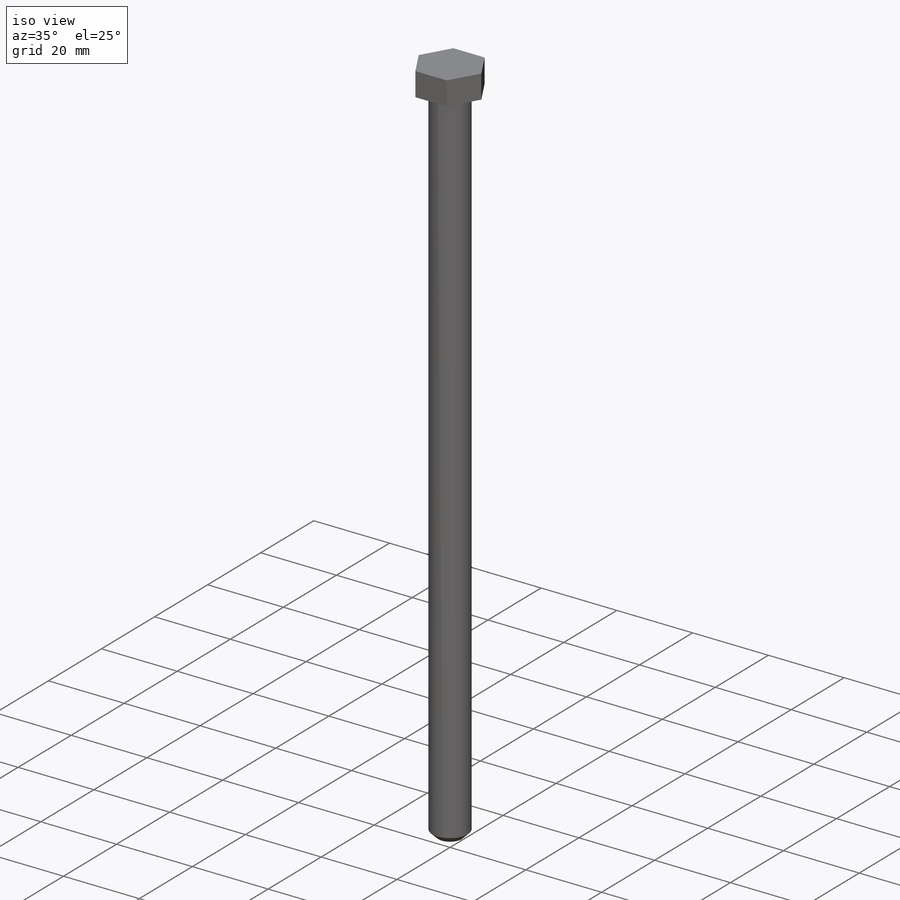
[diagram: iso view]
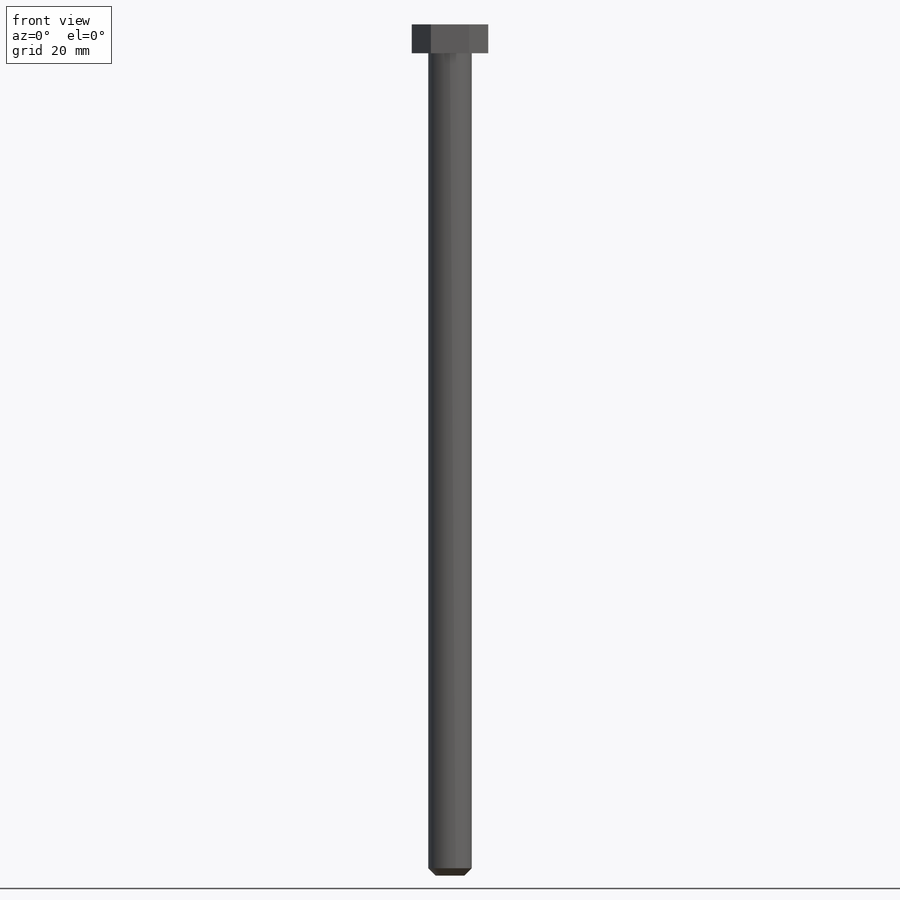
[diagram: front view]
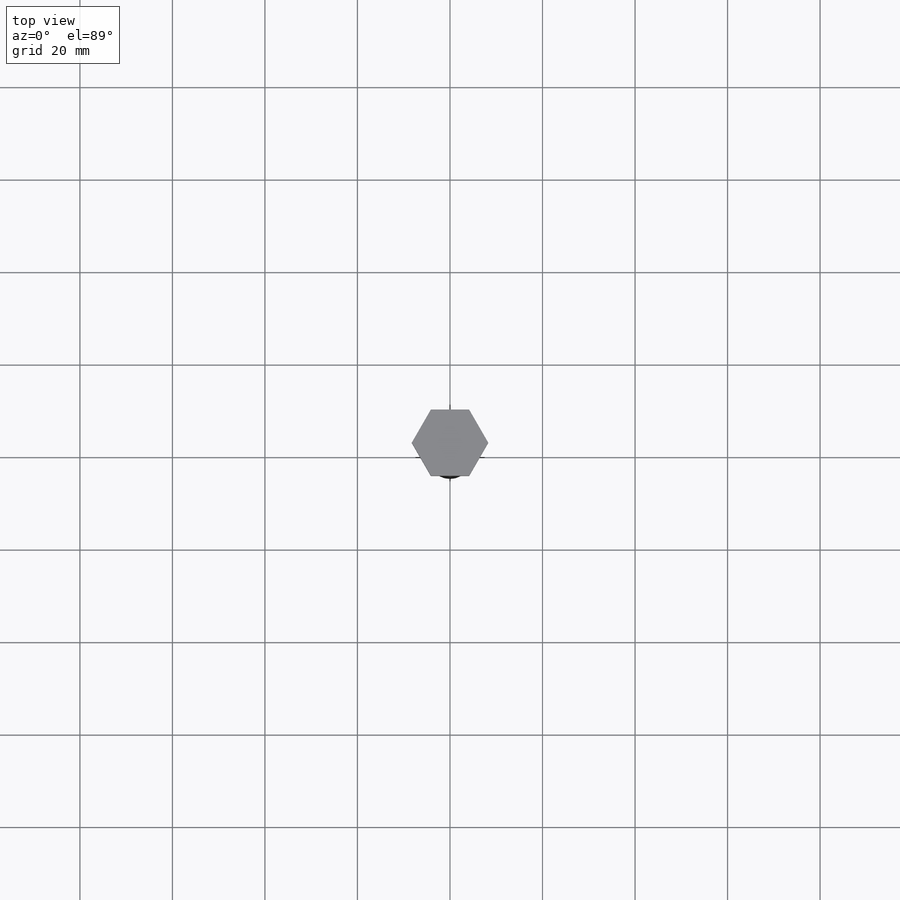
[diagram: top view]
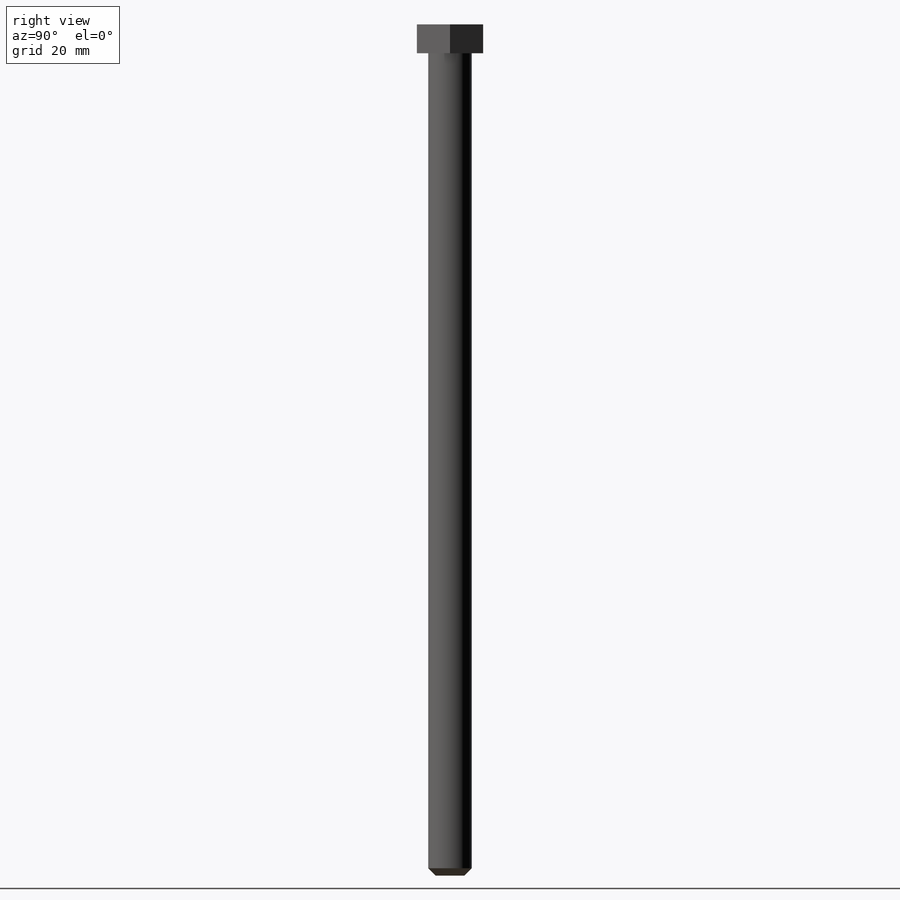
[diagram: right view]
SOLIDWORKS PART (.sldprt)
format: sldprt  version: not decoded by parser v0  size: 151,040 bytes
history: native  units: mm
features: sketch x2, extrude x2, material x1, chamfer x1 (+11 scaffold rows collapsed)
feature tree (17):
  scaffold x11  (default folders/planes/origin — collapsed)
  material  "AISI 4130 Steel, annealed at 865C"
  sketch  "Sketch1"  dims[D1=14.3129mm]
  extrude  "Extrude1"  Depth=6.223mm
  sketch  "Sketch2"  dims[D1=9.398mm]
  extrude  "Extrude2"  Depth=177.8mm
  chamfer  "Chamfer1"  Distance=1.5875mm Angle=45deg ModelUUID=0deg UUID=0deg
decode coverage: 5 of 5 modeling features carry decoded parameters
note: suppression state not decoded; provenance and decode notes live in map.json
